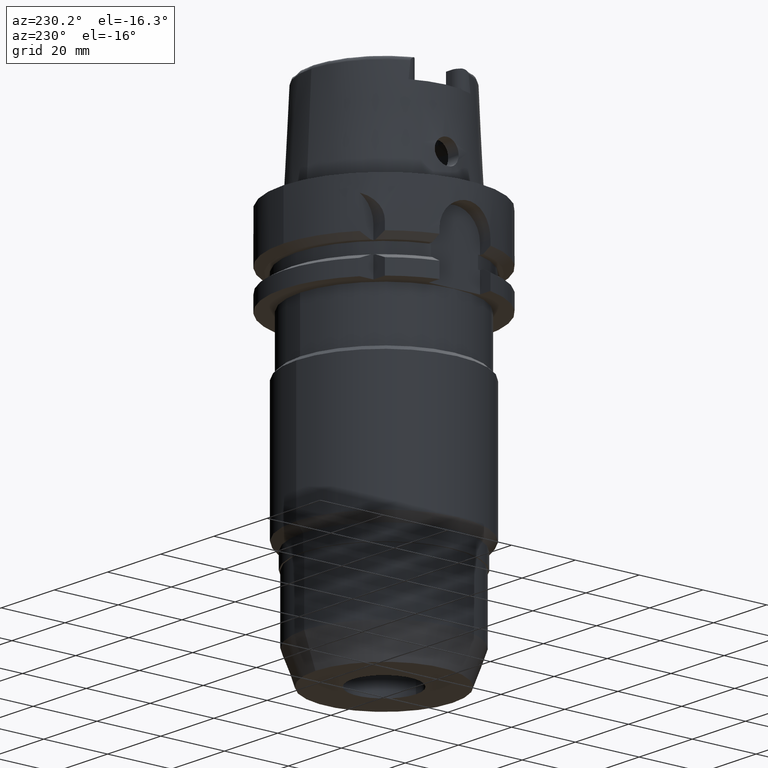
[diagram: clean part render]
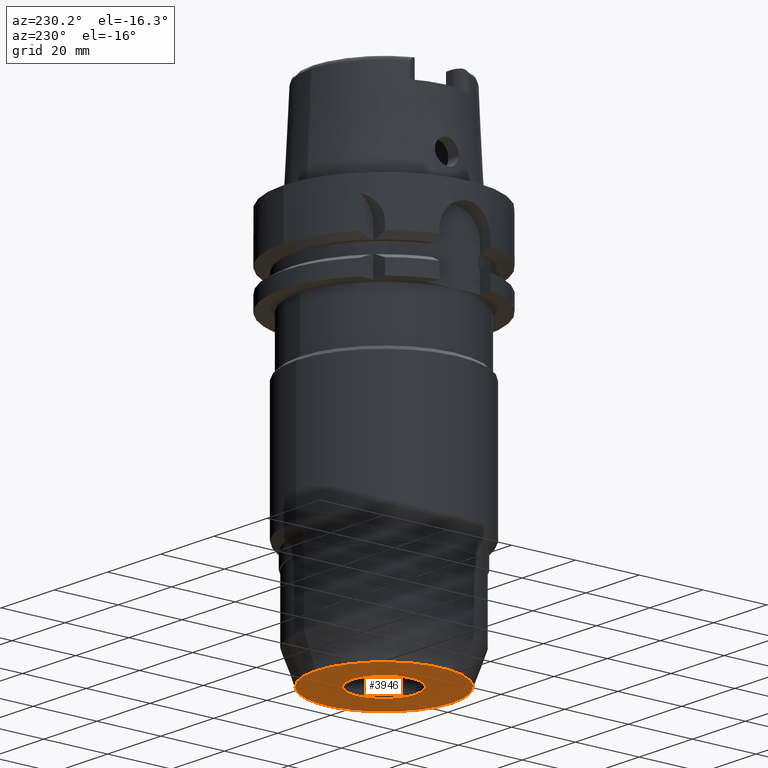
[diagram: same view with one face highlighted and labeled with its STEP entity id]
A machine part, auxiliary view. The second image highlights one B-rep face of the part: STEP entity #3946.
In plain terms, the highlighted planar face has unit normal (0, 0, 1).
Its self-contained STEP definition (entity closure, byte-faithful):
#1823=CARTESIAN_POINT('',(0.E0,0.E0,-1.2E2));
#1824=DIRECTION('',(0.E0,0.E0,1.E0));
#1825=DIRECTION('',(0.E0,-1.E0,0.E0));
#1826=AXIS2_PLACEMENT_3D('',#1823,#1824,#1825);
#1831=CARTESIAN_POINT('',(0.E0,0.E0,-1.2E2));
#1832=DIRECTION('',(0.E0,0.E0,1.E0));
#1833=DIRECTION('',(0.E0,1.E0,0.E0));
#1834=AXIS2_PLACEMENT_3D('',#1831,#1832,#1833);
#1839=CARTESIAN_POINT('',(0.E0,0.E0,-1.2E2));
#1840=DIRECTION('',(0.E0,0.E0,-1.E0));
#1841=DIRECTION('',(0.E0,-1.E0,0.E0));
#1842=AXIS2_PLACEMENT_3D('',#1839,#1840,#1841);
#1847=CARTESIAN_POINT('',(0.E0,0.E0,-1.2E2));
#1848=DIRECTION('',(0.E0,0.E0,-1.E0));
#1849=DIRECTION('',(0.E0,1.E0,0.E0));
#1850=AXIS2_PLACEMENT_3D('',#1847,#1848,#1849);
#2482=CARTESIAN_POINT('',(0.E0,1.E1,-1.2E2));
#2483=VERTEX_POINT('',#2482);
#2484=CARTESIAN_POINT('',(0.E0,-1.E1,-1.2E2));
#2485=VERTEX_POINT('',#2484);
#2486=CARTESIAN_POINT('',(0.E0,-2.150588575104E1,-1.2E2));
#2487=CARTESIAN_POINT('',(0.E0,2.150588575104E1,-1.2E2));
#2488=VERTEX_POINT('',#2486);
#2489=VERTEX_POINT('',#2487);
#3931=CARTESIAN_POINT('',(0.E0,0.E0,-1.2E2));
#3932=DIRECTION('',(0.E0,0.E0,1.E0));
#3933=DIRECTION('',(0.E0,1.E0,0.E0));
#3934=AXIS2_PLACEMENT_3D('',#3931,#3932,#3933);
#3935=PLANE('',#3934);
#3936=ORIENTED_EDGE('',*,*,#3910,.T.);
#3937=ORIENTED_EDGE('',*,*,#3926,.T.);
#3938=EDGE_LOOP('',(#3936,#3937));
#3939=FACE_OUTER_BOUND('',#3938,.F.);
#3941=ORIENTED_EDGE('',*,*,#3940,.T.);
#3943=ORIENTED_EDGE('',*,*,#3942,.T.);
#3944=EDGE_LOOP('',(#3941,#3943));
#3945=FACE_BOUND('',#3944,.F.);
#1827=CIRCLE('',#1826,2.150588575104E1);
#1835=CIRCLE('',#1834,2.150588575104E1);
#1843=CIRCLE('',#1842,1.E1);
#1851=CIRCLE('',#1850,1.E1);
#3910=EDGE_CURVE('',#2488,#2489,#1827,.T.);
#3926=EDGE_CURVE('',#2489,#2488,#1835,.T.);
#3940=EDGE_CURVE('',#2485,#2483,#1843,.T.);
#3942=EDGE_CURVE('',#2483,#2485,#1851,.T.);
#3946=ADVANCED_FACE('',(#3939,#3945),#3935,.F.);